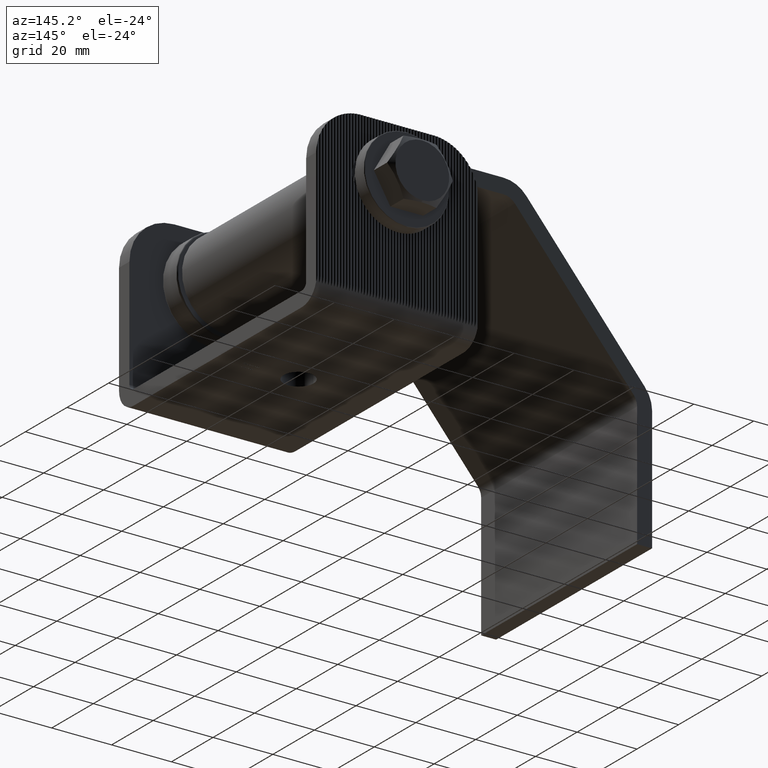
[diagram: clean part render]
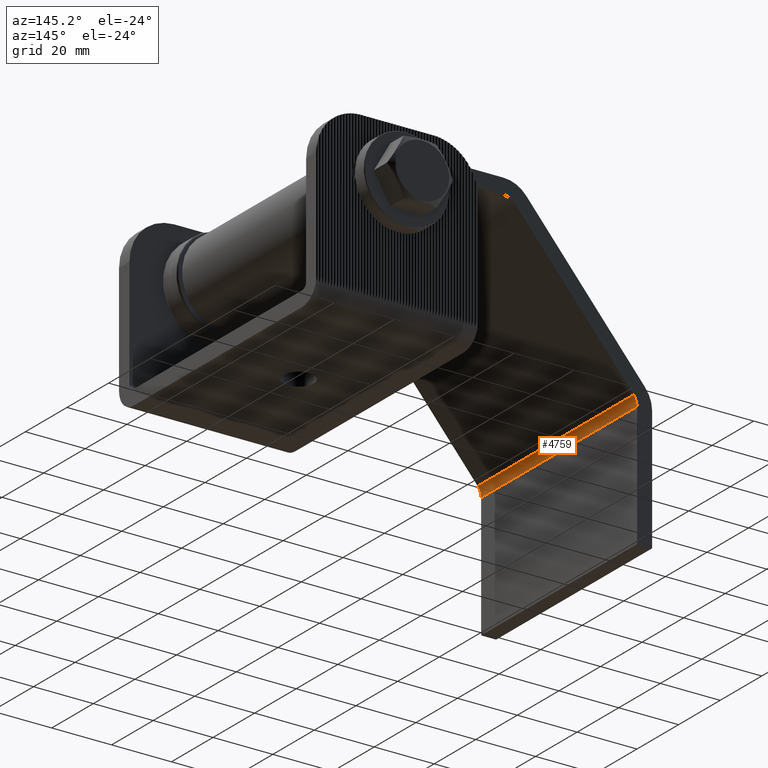
[diagram: same view with one face highlighted and labeled with its STEP entity id]
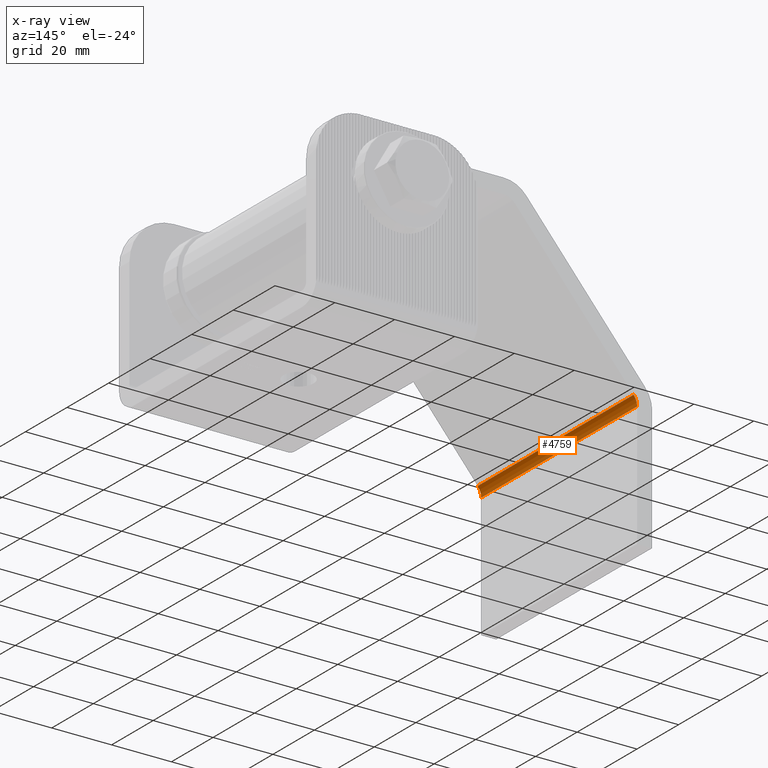
[diagram: x-ray of the same camera — body ghosted, the highlighted face saturated]
A machine part, auxiliary view. The second image highlights one B-rep face of the part: STEP entity #4759.
The next image is the same camera in x-ray: the body ghosted, the highlighted face saturated — about 0% of this face is hidden behind the body in this view.
In plain terms, the highlighted cylindrical surface (edge-blend (fillet) strip) has radius 5 mm, axis along (-0, -1, 0).
Its self-contained STEP definition (entity closure, byte-faithful):
#1126 = DIRECTION ( 'NONE',  ( 0.0000000000000000000, 0.0000000000000000000, 1.000000000000000000 ) ) ;
#1839 = CARTESIAN_POINT ( 'NONE',  ( -84.99999999999997200, 75.00000000000000000, 42.38341654756661100 ) ) ;
#1956 = ORIENTED_EDGE ( 'NONE', *, *, #11774, .F. ) ;
#2167 = AXIS2_PLACEMENT_3D ( 'NONE', #6210, #25164, #20870 ) ;
#2382 = CARTESIAN_POINT ( 'NONE',  ( -83.83378836496550000, 0.0000000000000000000, 39.17373326526989500 ) ) ;
#2726 = DIRECTION ( 'NONE',  ( -0.0000000000000000000, -1.000000000000000000, -0.0000000000000000000 ) ) ;
#3085 = CARTESIAN_POINT ( 'NONE',  ( -79.99999999999997200, 75.00000000000000000, 42.38341654756661100 ) ) ;
#3521 = VECTOR ( 'NONE', #10476, 1000.000000000000000 ) ;
#3780 = DIRECTION ( 'NONE',  ( -0.0000000000000000000, 1.000000000000000000, -0.0000000000000000000 ) ) ;
#3926 = FACE_OUTER_BOUND ( 'NONE', #26158, .T. ) ;
#4759 = ADVANCED_FACE ( 'NONE', ( #3926 ), #17718, .F. ) ;
#5490 = ORIENTED_EDGE ( 'NONE', *, *, #11552, .F. ) ;
#6210 = CARTESIAN_POINT ( 'NONE',  ( -79.99999999999997200, 75.00000000000000000, 42.38341654756661100 ) ) ;
#6958 = DIRECTION ( 'NONE',  ( 0.0000000000000000000, 0.0000000000000000000, 1.000000000000000000 ) ) ;
#7678 = CIRCLE ( 'NONE', #16408, 4.999999999999997300 ) ;
#8090 = VECTOR ( 'NONE', #3780, 1000.000000000000000 ) ;
#9875 = EDGE_CURVE ( 'NONE', #17998, #11879, #18945, .T. ) ;
#10476 = DIRECTION ( 'NONE',  ( 0.0000000000000000000, -1.000000000000000000, 0.0000000000000000000 ) ) ;
#11552 = EDGE_CURVE ( 'NONE', #15247, #24460, #11660, .T. ) ;
#11660 = LINE ( 'NONE', #1839, #8090 ) ;
#11774 = EDGE_CURVE ( 'NONE', #24460, #17998, #15238, .T. ) ;
#11879 = VERTEX_POINT ( 'NONE', #15928 ) ;
#12567 = ORIENTED_EDGE ( 'NONE', *, *, #13979, .F. ) ;
#13979 = EDGE_CURVE ( 'NONE', #11879, #15247, #7678, .T. ) ;
#14618 = AXIS2_PLACEMENT_3D ( 'NONE', #3085, #2726, #6958 ) ;
#14756 = CARTESIAN_POINT ( 'NONE',  ( -83.83378836496551400, 75.00000000000000000, 39.17373326526991700 ) ) ;
#14926 = CARTESIAN_POINT ( 'NONE',  ( -84.99999999999997200, 0.0000000000000000000, 42.38341654756661100 ) ) ;
#15238 = CIRCLE ( 'NONE', #14618, 4.999999999999997300 ) ;
#15247 = VERTEX_POINT ( 'NONE', #14926 ) ;
#15928 = CARTESIAN_POINT ( 'NONE',  ( -83.83378836496551400, 0.0000000000000000000, 39.17373326526991700 ) ) ;
#16408 = AXIS2_PLACEMENT_3D ( 'NONE', #17833, #20033, #1126 ) ;
#17371 = ORIENTED_EDGE ( 'NONE', *, *, #9875, .F. ) ;
#17718 = CYLINDRICAL_SURFACE ( 'NONE', #2167, 4.999999999999997300 ) ;
#17833 = CARTESIAN_POINT ( 'NONE',  ( -79.99999999999997200, 0.0000000000000000000, 42.38341654756661100 ) ) ;
#17998 = VERTEX_POINT ( 'NONE', #14756 ) ;
#18945 = LINE ( 'NONE', #2382, #3521 ) ;
#20033 = DIRECTION ( 'NONE',  ( 0.0000000000000000000, 1.000000000000000000, 0.0000000000000000000 ) ) ;
#20870 = DIRECTION ( 'NONE',  ( 0.0000000000000000000, 0.0000000000000000000, 1.000000000000000000 ) ) ;
#24460 = VERTEX_POINT ( 'NONE', #25364 ) ;
#25164 = DIRECTION ( 'NONE',  ( 0.0000000000000000000, 1.000000000000000000, 0.0000000000000000000 ) ) ;
#25364 = CARTESIAN_POINT ( 'NONE',  ( -84.99999999999997200, 75.00000000000000000, 42.38341654756661100 ) ) ;
#26158 = EDGE_LOOP ( 'NONE', ( #1956, #5490, #12567, #17371 ) ) ;